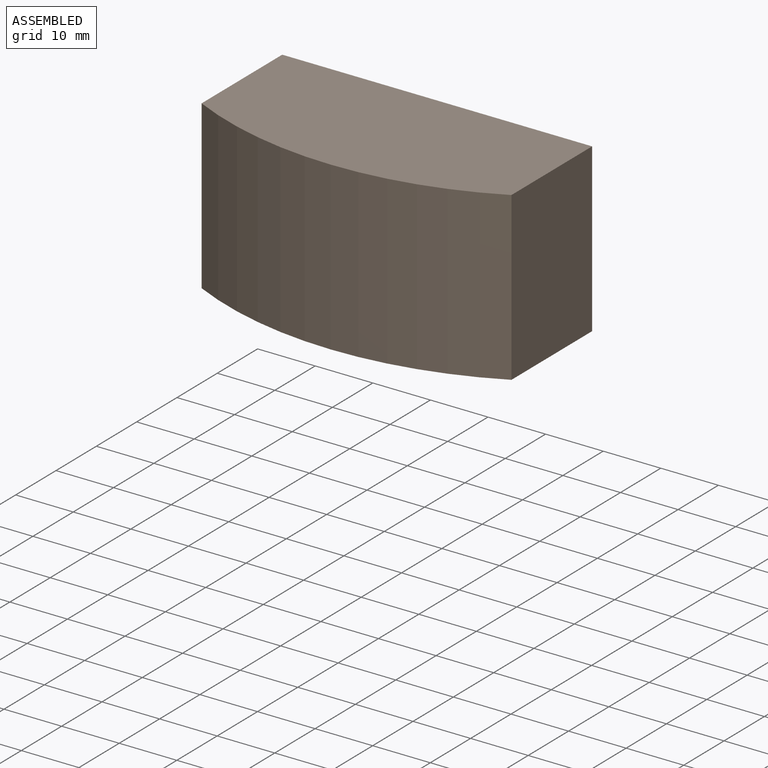
[diagram: assembled view]
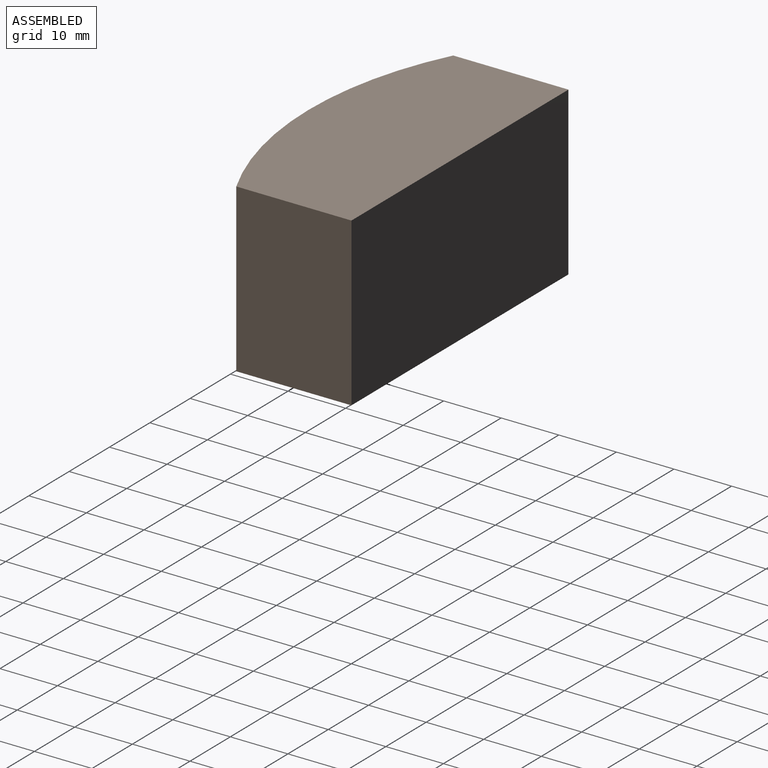
[diagram: assembled view, second angle]
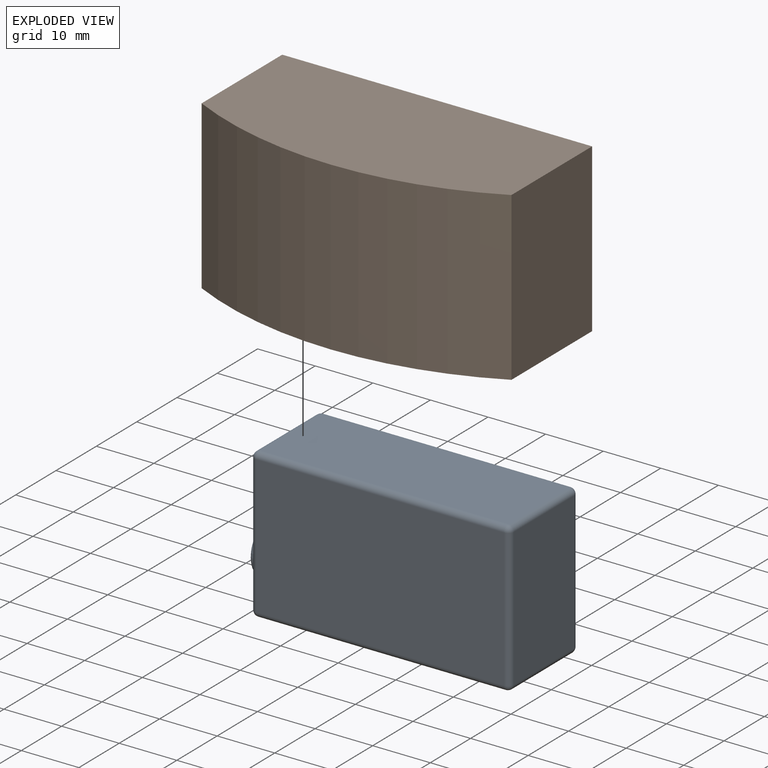
[diagram: exploded view]
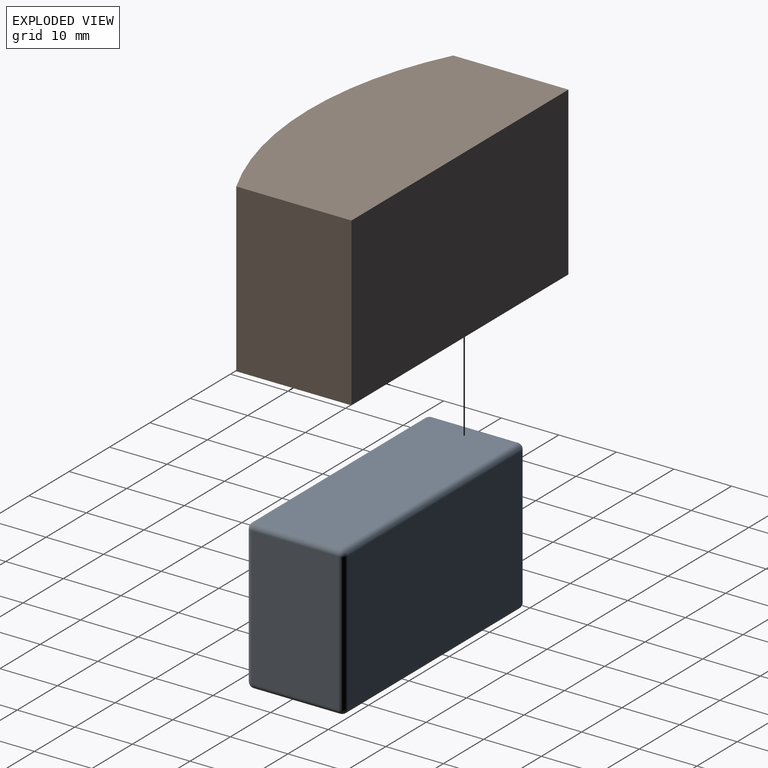
[diagram: exploded view, second angle]
ASSEMBLY  parts=2 mates=3
PART A: 40 faces, bbox 26x17x48 mm
  f0: plane 24x15mm, normal (0,0,1), area 293.2mm2, adj f6,f10,f11,f12,f27,f30
  f1: plane 43x15mm, normal (-1,0,0), area 645mm2, adj f9,f10,f19,f20
  f2: plane 43x24mm, normal (0,-1,0), area 1032mm2, adj f11,f20,f21,f25
  f3: plane 43x15mm, normal (1,0,0), area 645mm2, adj f12,f13,f21,f22
  f4: plane 43x24mm, normal (0,1,0), area 1032mm2, adj f6,f9,f13,f14
  f5: plane 24x15mm, normal (0,0,-1), area 360mm2, adj f14,f19,f22,f25
  f6: cylinder r=1mm len=24mm, axis (-1,0,0), area 37.7mm2, adj f0,f4,f7,f8
  f7: sphere r=1mm, area 1.6mm2, adj f6,f9,f10
  f8: sphere r=1mm, area 1.6mm2, adj f6,f12,f13
  f9: cylinder r=1mm len=43mm, axis (0,0,-1), area 67.5mm2, adj f1,f4,f7,f15
  f10: cylinder r=1mm len=15mm, axis (0,-1,0), area 23.6mm2, adj f0,f1,f7,f16
  f11: cylinder r=1mm len=24mm, axis (1,0,0), area 37.7mm2, adj f0,f2,f16,f17
  f12: cylinder r=1mm len=15mm, axis (0,1,0), area 23.6mm2, adj f0,f3,f8,f17
  f13: cylinder r=1mm len=43mm, axis (0,0,-1), area 67.5mm2, adj f3,f4,f8,f18
  f14: cylinder r=1mm len=24mm, axis (1,0,0), area 37.7mm2, adj f4,f5,f15,f18
  f15: sphere r=1mm, area 1.6mm2, adj f9,f14,f19
  f16: sphere r=1mm, area 1.6mm2, adj f10,f11,f20
  f17: sphere r=1mm, area 1.6mm2, adj f11,f12,f21
  f18: sphere r=1mm, area 1.6mm2, adj f13,f14,f22
  f19: cylinder r=1mm len=15mm, axis (0,1,0), area 23.6mm2, adj f1,f5,f15,f23
  f20: cylinder r=1mm len=43mm, axis (0,0,-1), area 67.5mm2, adj f1,f2,f16,f23
  f21: cylinder r=1mm len=43mm, axis (0,0,-1), area 67.5mm2, adj f2,f3,f17,f24
  f22: cylinder r=1mm len=15mm, axis (0,-1,0), area 23.6mm2, adj f3,f5,f18,f24
  f23: sphere r=1mm, area 1.6mm2, adj f19,f20,f25
  f24: sphere r=1mm, area 1.6mm2, adj f21,f22,f25
  f25: cylinder r=1mm len=24mm, axis (-1,0,0), area 37.7mm2, adj f2,f5,f23,f24
  f26: plane 5.6x5.6mm, normal (0,0,1), area 1.7mm2, adj f38,f39
  f27: cylinder r=3mm len=6mm, axis (0,0,-1), area 52.8mm2, adj f0,f39
  f28: cylinder r=2.5mm len=5mm, axis (0,0,-1), area 44mm2, adj f29,f38
  f29: plane 5x5mm, normal (0,0,1), area 19.6mm2, adj f28
  f30: cylinder r=3.5mm len=7mm, axis (0,0,-1), area 22mm2, adj f0,f35
  f31: plane 8x8mm, normal (0,0,1), area 11.8mm2, adj f36,f37
  f32: cylinder r=4.5mm len=9mm, axis (0,0,-1), area 14.1mm2, adj f35,f37
  f33: plane 6x6mm, normal (0,0,1), area 28.3mm2, adj f34
  f34: cylinder r=3mm len=6mm, axis (0,0,-1), area 47.1mm2, adj f33,f36
  f35: torus R=4.5mm, axis (0,0,1), area 38.1mm2, adj f30,f32
  f36: torus R=3.5mm, axis (0,0,1), area 15.7mm2, adj f31,f34
  f37: torus R=4mm, axis (0,0,1), area 21.3mm2, adj f31,f32
  f38: torus R=2.7mm, axis (0,0,1), area 5.1mm2, adj f26,f28
  f39: torus R=2.8mm, axis (0,0,1), area 5.8mm2, adj f26,f27
PART B: 19 faces, bbox 53.8x26.4x29 mm
  f0: plane 28x18mm, normal (-1,0,0), area 504mm2, adj f5,f14,f16,f18
  f1: plane 28x18mm, normal (1,0,0), area 504mm2, adj f9,f10,f16,f18
  f2: plane 53.8x29mm, normal (0,1,0), area 1560.2mm2, adj f3,f15,f16,f17
  f3: plane 29x20mm, normal (-1,0,0), area 580mm2, adj f2,f4,f16,f17
  f4: cylinder r=60mm len=53.8mm, axis (0,0,-1), area 1617.9mm2, adj f3,f15,f16,f17
  f5: plane 28x5.5mm, normal (0,1,0), area 154mm2, adj f0,f6,f16,f18
  f6: plane 28x2mm, normal (1,0,0), area 56mm2, adj f5,f7,f16,f18
  f7: plane 28x1mm, normal (0,1,0), area 28mm2, adj f6,f8,f16,f18
  f8: plane 28x2mm, normal (-1,0,0), area 56mm2, adj f7,f9,f16,f18
  f9: plane 45.3x28mm, normal (0,1,0), area 1268.4mm2, adj f1,f8,f16,f18
  f10: plane 45.3x28mm, normal (0,-1,0), area 1268.4mm2, adj f1,f11,f16,f18
  f11: plane 28x2mm, normal (-1,0,0), area 56mm2, adj f10,f12,f16,f18
  f12: plane 28x1mm, normal (0,-1,0), area 28mm2, adj f11,f13,f16,f18
  f13: plane 28x2mm, normal (1,0,0), area 56mm2, adj f12,f14,f16,f18
  f14: plane 28x5.5mm, normal (0,-1,0), area 154mm2, adj f0,f13,f16,f18
  f15: plane 29x20mm, normal (1,0,0), area 580mm2, adj f2,f4,f16,f17
  f16: plane 53.8x26.37mm, normal (0,0,1), area 378.5mm2, adj f0,f1,f2,f3,f4,f5,f6,f7
  f17: plane 53.8x26.37mm, normal (0,0,-1), area 1306.9mm2, adj f2,f3,f4,f15
  f18: plane 51.8x18mm, normal (0,0,1), area 928.4mm2, adj f0,f1,f5,f6,f7,f8,f9,f10
PLACE A rot(axis=(0.71,0,-0.71),180deg) t=(-122.83,52.25,-45.74)mm
PLACE B rot(axis=(0,-1,0),180deg) t=(-148.73,96.38,-31.74)mm
MATE planar A.f1 <-> B.f18  axis (0,0,1) through (-145.33,52.25,-32.74)mm
MATE planar A.f5 <-> B.f1  axis (1,0,0) through (-122.83,52.25,-57.74)mm
MATE planar A.f4 <-> B.f9  axis (0,-1,0) through (-145.33,43.75,-45.74)mm
